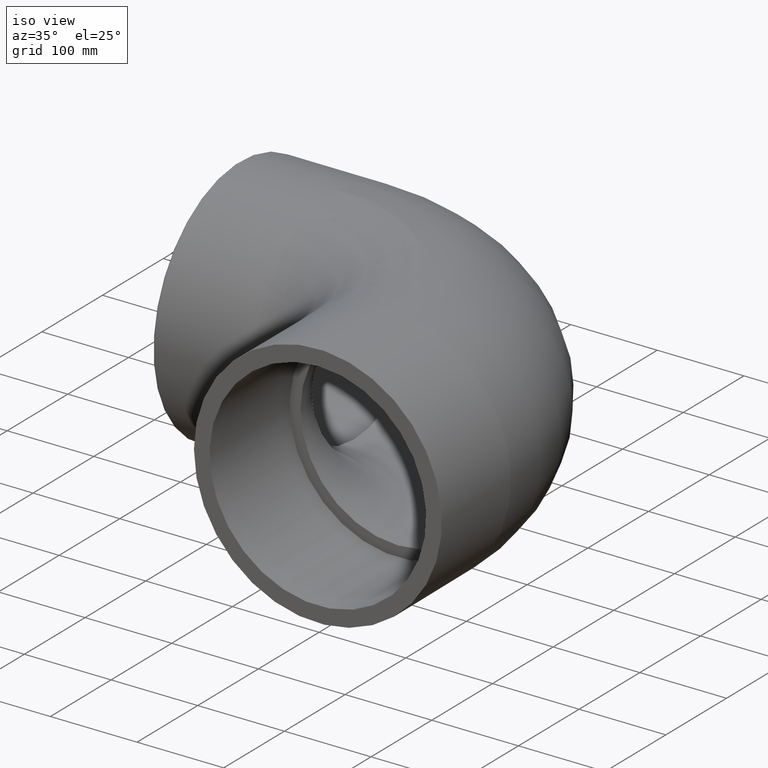
[diagram: clean part render]
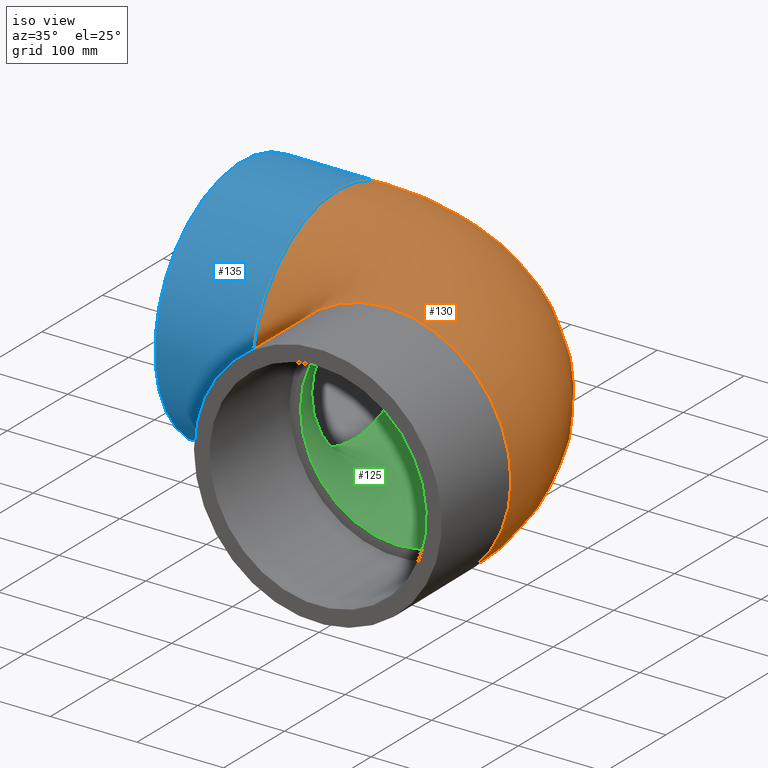
[diagram: same view with three faces highlighted in distinct colors, each labeled with its STEP entity id]
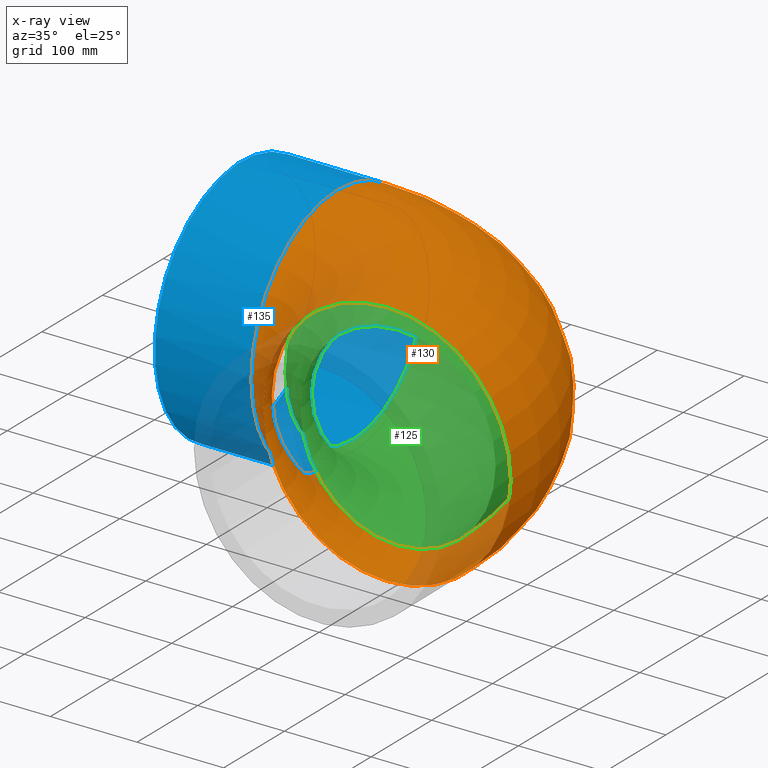
[diagram: x-ray of the same camera — body ghosted, the three highlighted faces saturated]
A machine part, iso view with three faces highlighted in distinct colors.
The next image is the same camera in x-ray (body ghosted, the three faces saturated) — at least one of them is partly hidden behind the body in this view.
Their STEP definitions:

[orange] entity #130 — the highlighted toroidal blend (fillet) surface has major radius 188 mm and minor (blend) radius 143 mm.
#28=FACE_BOUND('',#56,.T.);
#39=FACE_OUTER_BOUND('',#55,.T.);
#55=EDGE_LOOP('',(#110));
#56=EDGE_LOOP('',(#111));
#73=CIRCLE('',#150,143.);
#74=CIRCLE('',#151,143.);
#84=VERTEX_POINT('',#225);
#85=VERTEX_POINT('',#227);
#95=EDGE_CURVE('',#84,#84,#73,.T.);
#96=EDGE_CURVE('',#85,#85,#74,.T.);
#110=ORIENTED_EDGE('',*,*,#95,.T.);
#111=ORIENTED_EDGE('',*,*,#96,.T.);
#123=TOROIDAL_SURFACE('',#149,188.,143.);
#130=ADVANCED_FACE('',(#39,#28),#123,.T.);
#149=AXIS2_PLACEMENT_3D('',#224,#184,#185);
#150=AXIS2_PLACEMENT_3D('',#226,#186,#187);
#151=AXIS2_PLACEMENT_3D('',#228,#188,#189);
#184=DIRECTION('center_axis',(0.,0.,-1.));
#185=DIRECTION('ref_axis',(-1.,0.,0.));
#186=DIRECTION('center_axis',(6.12323399573677E-17,1.,0.));
#187=DIRECTION('ref_axis',(0.,0.,-1.));
#188=DIRECTION('center_axis',(1.,0.,0.));
#189=DIRECTION('ref_axis',(0.,0.,-1.));
#224=CARTESIAN_POINT('Origin',(-188.,-188.,0.));
#225=CARTESIAN_POINT('',(-1.77635683940025E-14,-188.,143.));
#226=CARTESIAN_POINT('Origin',(-1.15116799119851E-14,-188.,0.));
#227=CARTESIAN_POINT('',(-188.,-3.50248984556143E-14,-143.));
#228=CARTESIAN_POINT('Origin',(-188.,0.,0.));

[blue] entity #135 — the highlighted cylindrical surface (bore or boss wall) has radius 143 mm, axis along (1, 0, 0).
#22=CYLINDRICAL_SURFACE('',#159,143.);
#33=FACE_BOUND('',#66,.T.);
#44=FACE_OUTER_BOUND('',#65,.T.);
#65=EDGE_LOOP('',(#120));
#66=EDGE_LOOP('',(#121));
#74=CIRCLE('',#151,143.);
#77=CIRCLE('',#157,143.);
#85=VERTEX_POINT('',#227);
#88=VERTEX_POINT('',#236);
#96=EDGE_CURVE('',#85,#85,#74,.T.);
#99=EDGE_CURVE('',#88,#88,#77,.T.);
#120=ORIENTED_EDGE('',*,*,#96,.F.);
#121=ORIENTED_EDGE('',*,*,#99,.F.);
#135=ADVANCED_FACE('',(#44,#33),#22,.T.);
#151=AXIS2_PLACEMENT_3D('',#228,#188,#189);
#157=AXIS2_PLACEMENT_3D('',#237,#200,#201);
#159=AXIS2_PLACEMENT_3D('',#239,#204,#205);
#188=DIRECTION('center_axis',(1.,0.,0.));
#189=DIRECTION('ref_axis',(0.,0.,-1.));
#200=DIRECTION('center_axis',(-1.,0.,0.));
#201=DIRECTION('ref_axis',(0.,-1.,1.83697019872103E-16));
#204=DIRECTION('center_axis',(1.,0.,0.));
#205=DIRECTION('ref_axis',(0.,1.,0.));
#227=CARTESIAN_POINT('',(-188.,-3.50248984556143E-14,-143.));
#228=CARTESIAN_POINT('Origin',(-188.,0.,0.));
#236=CARTESIAN_POINT('',(-299.5,143.,-4.37811230695179E-14));
#237=CARTESIAN_POINT('Origin',(-299.5,0.,0.));
#239=CARTESIAN_POINT('Origin',(-245.,0.,0.));

[green] entity #125 — the highlighted toroidal blend (fillet) surface has major radius 170 mm and minor (blend) radius 112.5 mm.
#23=FACE_BOUND('',#46,.T.);
#34=FACE_OUTER_BOUND('',#45,.T.);
#45=EDGE_LOOP('',(#100));
#46=EDGE_LOOP('',(#101));
#67=CIRCLE('',#139,112.5);
#68=CIRCLE('',#140,112.5);
#78=VERTEX_POINT('',#208);
#79=VERTEX_POINT('',#210);
#89=EDGE_CURVE('',#78,#78,#67,.T.);
#90=EDGE_CURVE('',#79,#79,#68,.T.);
#100=ORIENTED_EDGE('',*,*,#89,.F.);
#101=ORIENTED_EDGE('',*,*,#90,.F.);
#122=TOROIDAL_SURFACE('',#138,170.,112.5);
#125=ADVANCED_FACE('',(#34,#23),#122,.F.);
#138=AXIS2_PLACEMENT_3D('',#207,#162,#163);
#139=AXIS2_PLACEMENT_3D('',#209,#164,#165);
#140=AXIS2_PLACEMENT_3D('',#211,#166,#167);
#162=DIRECTION('center_axis',(0.,0.,-1.));
#163=DIRECTION('ref_axis',(-1.,0.,0.));
#164=DIRECTION('center_axis',(6.12323399573677E-17,1.,0.));
#165=DIRECTION('ref_axis',(1.,-6.12323399573677E-17,0.));
#166=DIRECTION('center_axis',(1.,0.,0.));
#167=DIRECTION('ref_axis',(0.,1.,0.));
#207=CARTESIAN_POINT('Origin',(-170.,-170.,0.));
#208=CARTESIAN_POINT('',(1.77635683940025E-14,-170.,112.5));
#209=CARTESIAN_POINT('Origin',(0.,-170.,0.));
#210=CARTESIAN_POINT('',(-170.,1.37772764904077E-14,112.5));
#211=CARTESIAN_POINT('Origin',(-170.,0.,0.));